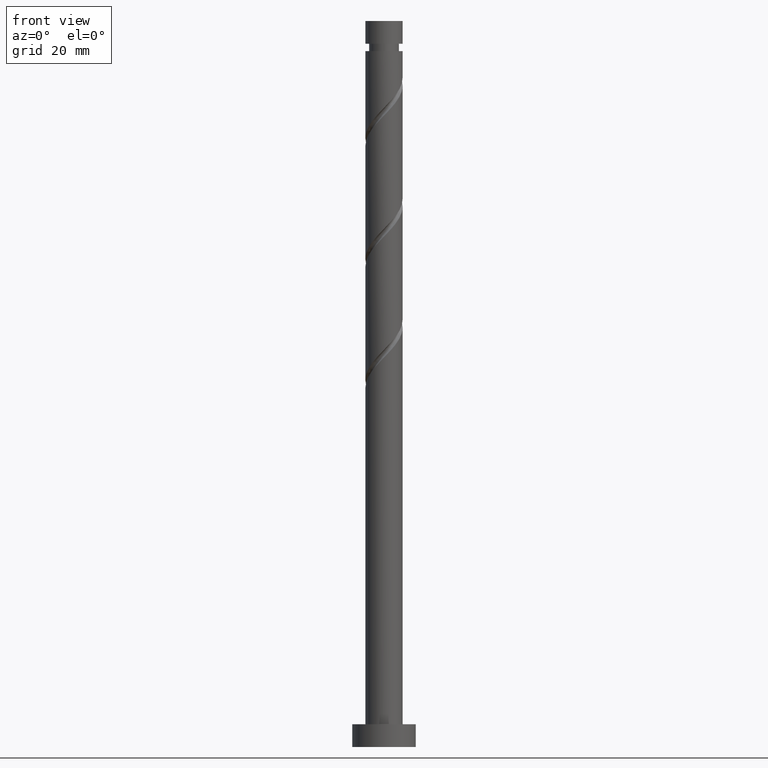
[diagram: clean part render]
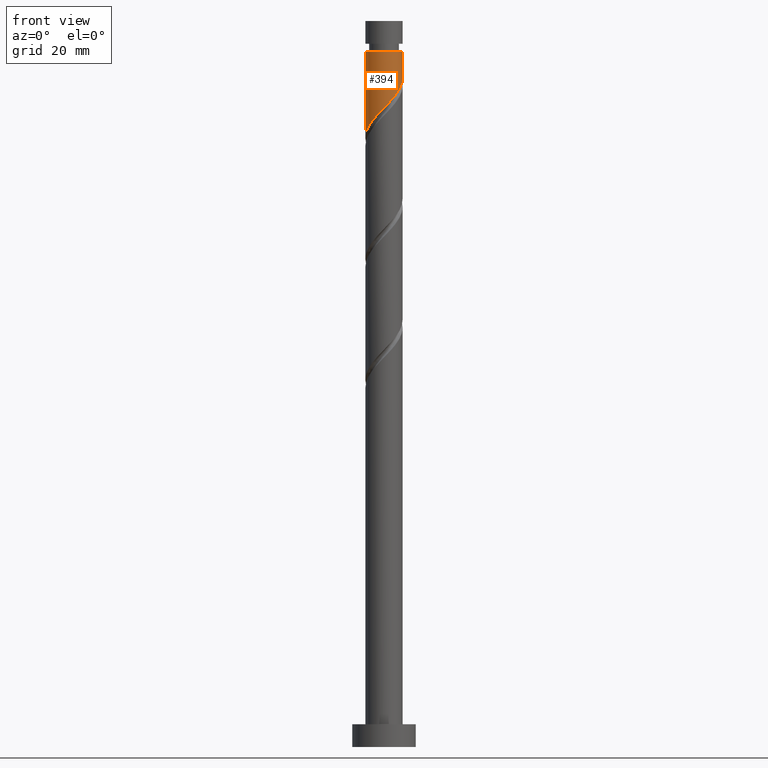
[diagram: same view with one face highlighted and labeled with its STEP entity id]
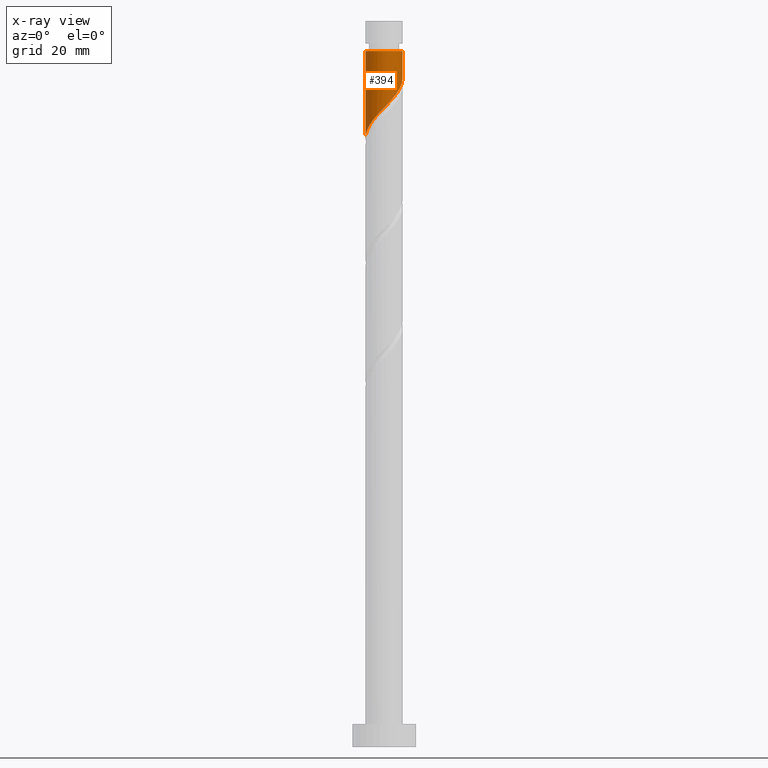
[diagram: x-ray of the same camera — body ghosted, the highlighted face saturated]
A machine part, front view. The second image highlights one B-rep face of the part: STEP entity #394.
The next image is the same camera in x-ray: the body ghosted, the highlighted face saturated — about 0% of this face is hidden behind the body in this view.
In plain terms, the highlighted cylindrical surface (edge-blend (fillet) strip) has radius 4.1 mm, axis along (-0, -0, -1).
Its self-contained STEP definition (entity closure, byte-faithful):
#1 = CARTESIAN_POINT ( 'NONE',  ( 0.3491609805032936387, -4.085105458821592705, 141.2346666632375900 ) ) ;
#9 = CARTESIAN_POINT ( 'NONE',  ( 2.969276373543971115, -2.888061194458450665, 144.2649696935406496 ) ) ;
#16 = CARTESIAN_POINT ( 'NONE',  ( 1.485924713333949487, -3.821259968427092701, 142.4467878753588650 ) ) ;
#46 = ORIENTED_EDGE ( 'NONE', *, *, #325, .F. ) ;
#51 = DIRECTION ( 'NONE',  ( -1.000000000000000000, 0.000000000000000000, 0.000000000000000000 ) ) ;
#59 = FACE_OUTER_BOUND ( 'NONE', #692, .T. ) ;
#93 = EDGE_CURVE ( 'NONE', #1343, #898, #1187, .T. ) ;
#243 = CARTESIAN_POINT ( 'NONE',  ( 4.099999999999999645, -0.1179796587476808212, 147.4165685923657065 ) ) ;
#274 = CARTESIAN_POINT ( 'NONE',  ( -1.393590883699232119, -3.900692771072031828, 139.4164848450557770 ) ) ;
#278 = VERTEX_POINT ( 'NONE', #1240 ) ;
#294 = EDGE_CURVE ( 'NONE', #898, #1003, #1110, .T. ) ;
#325 = EDGE_CURVE ( 'NONE', #1343, #278, #412, .T. ) ;
#339 = VECTOR ( 'NONE', #431, 1000.000000000000000 ) ;
#376 = CARTESIAN_POINT ( 'NONE',  ( -1.914841846274434101, -3.625380077144507940, 138.8104242389952105 ) ) ;
#394 = ADVANCED_FACE ( 'NONE', ( #59 ), #538, .T. ) ;
#412 = LINE ( 'NONE', #1148, #339 ) ;
#413 =( BOUNDED_CURVE ( )  B_SPLINE_CURVE ( 2, ( #1255, #243, #524, #631, #502, #1533, #1127, #9, #1020, #1416, #16, #1271, #1, #510, #622, #274, #376, #1542, #1287, #649, #1409, #642, #1013, #531, #888 ),
 .UNSPECIFIED., .F., .T. ) 
 B_SPLINE_CURVE_WITH_KNOTS ( ( 3, 2, 2, 2, 2, 2, 2, 2, 2, 2, 2, 2, 3 ),
 ( 0.3045252162417514952, 0.3068181818181818232, 0.3181818181818181768, 0.3295454545454545303, 0.3409090909090908839, 0.3522727272727272929, 0.3636363636363636465, 0.3750000000000000000, 0.3863636363636363535, 0.3977272727272727071, 0.4090909090909091161, 0.4204545454545454697, 0.4295252162417514397 ),
 .UNSPECIFIED. ) 
 CURVE ( )  GEOMETRIC_REPRESENTATION_ITEM ( )  RATIONAL_B_SPLINE_CURVE ( ( 0.9061101570135566829, 0.9072237824201387912, 0.9090909090909161661, 0.8998376744372185154, 0.9090909090909161661, 0.8998376744372185154, 0.9090909090909161661, 0.8998376744372185154, 0.9090909090909161661, 0.8998376744372185154, 0.9090909090909161661, 0.8998376744372185154, 0.9090909090909161661, 0.8998376744372185154, 0.9090909090909161661, 0.8998376744372185154, 0.9090909090909161661, 0.8998376744372185154, 0.9090909090909161661, 0.8998376744372185154, 0.9090909090909161661, 0.8998376744372185154, 0.9090909090909161661, 0.9017048011079960013, 0.9061101570135565719 ) ) 
 REPRESENTATION_ITEM ( '' )  );
#431 = DIRECTION ( 'NONE',  ( -0.000000000000000000, -0.000000000000000000, -1.000000000000000000 ) ) ;
#474 = VECTOR ( 'NONE', #748, 1000.000000000000000 ) ;
#502 = CARTESIAN_POINT ( 'NONE',  ( 3.860989342997048546, -1.379406137895297535, 146.0831515117224626 ) ) ;
#510 = CARTESIAN_POINT ( 'NONE',  ( -0.2381885131556273905, -4.135307228927970868, 140.6286060571769667 ) ) ;
#524 = CARTESIAN_POINT ( 'NONE',  ( 4.093215763958126807, -0.2357640975311786624, 147.2952727238436239 ) ) ;
#531 = CARTESIAN_POINT ( 'NONE',  ( -4.100000000000000533, -0.4695686022789986591, 134.6912932167218457 ) ) ;
#538 = CYLINDRICAL_SURFACE ( 'NONE', #1657, 4.099999999999999645 ) ;
#582 = CARTESIAN_POINT ( 'NONE',  ( 0.000000000000000000, 0.000000000000000000, 153.3558787844497147 ) ) ;
#616 = ORIENTED_EDGE ( 'NONE', *, *, #1552, .F. ) ;
#622 = CARTESIAN_POINT ( 'NONE',  ( -0.8158896984274295328, -4.017999999999999794, 140.0225454511163719 ) ) ;
#631 = CARTESIAN_POINT ( 'NONE',  ( 4.059318004229829135, -0.8242796770264090300, 146.6892121177830290 ) ) ;
#642 = CARTESIAN_POINT ( 'NONE',  ( -3.860554850343157263, -1.501204813779628999, 135.7801212086921510 ) ) ;
#649 = CARTESIAN_POINT ( 'NONE',  ( -3.281236982628830123, -2.528039459591574722, 136.9922424208133691 ) ) ;
#651 = ORIENTED_EDGE ( 'NONE', *, *, #93, .T. ) ;
#692 = EDGE_LOOP ( 'NONE', ( #46, #651, #1405, #616 ) ) ;
#748 = DIRECTION ( 'NONE',  ( -0.000000000000000000, -0.000000000000000000, -1.000000000000000000 ) ) ;
#888 = CARTESIAN_POINT ( 'NONE',  ( -4.100000000000000533, -1.809775305123073791E-15, 134.2053332637506173 ) ) ;
#898 = VERTEX_POINT ( 'NONE', #1428 ) ;
#1003 = VERTEX_POINT ( 'NONE', #1478 ) ;
#1006 = CARTESIAN_POINT ( 'NONE',  ( -4.099999999999999645, 0.000000000000000000, 160.0000000000000000 ) ) ;
#1013 = CARTESIAN_POINT ( 'NONE',  ( -3.993834187014791759, -0.9269781478718408518, 135.1740606026314993 ) ) ;
#1020 = CARTESIAN_POINT ( 'NONE',  ( 2.502307663024825768, -3.247838721298709430, 143.6589090874799695 ) ) ;
#1044 = DIRECTION ( 'NONE',  ( -0.000000000000000000, -0.000000000000000000, -1.000000000000000000 ) ) ;
#1066 = DIRECTION ( 'NONE',  ( -1.000000000000000000, 0.000000000000000000, 0.000000000000000000 ) ) ;
#1089 = DIRECTION ( 'NONE',  ( -0.000000000000000000, -0.000000000000000000, -1.000000000000000000 ) ) ;
#1110 = LINE ( 'NONE', #1006, #474 ) ;
#1127 = CARTESIAN_POINT ( 'NONE',  ( 3.315968527654119313, -2.411296896611318186, 144.8710302996012160 ) ) ;
#1148 = CARTESIAN_POINT ( 'NONE',  ( 4.099999999999999645, 5.021051876504147385E-16, 160.0000000000000000 ) ) ;
#1187 = CIRCLE ( 'NONE', #1376, 4.099999999999992539 ) ;
#1240 = CARTESIAN_POINT ( 'NONE',  ( 4.100000000000000533, 8.824524215062922599E-16, 147.5386665970839601 ) ) ;
#1255 = CARTESIAN_POINT ( 'NONE',  ( 4.100000000000000533, 8.824524215062922599E-16, 147.5386665970839601 ) ) ;
#1258 = CARTESIAN_POINT ( 'NONE',  ( 4.099999999999992539, 5.021051876504142455E-16, 153.3558787844497147 ) ) ;
#1271 = CARTESIAN_POINT ( 'NONE',  ( 0.9365104741622169993, -4.034903688715218095, 141.8407272692981849 ) ) ;
#1287 = CARTESIAN_POINT ( 'NONE',  ( -2.858664895739233547, -2.939053421404278943, 137.5983030268739924 ) ) ;
#1343 = VERTEX_POINT ( 'NONE', #1258 ) ;
#1376 = AXIS2_PLACEMENT_3D ( 'NONE', #582, #1089, #1066 ) ;
#1405 = ORIENTED_EDGE ( 'NONE', *, *, #294, .T. ) ;
#1409 = CARTESIAN_POINT ( 'NONE',  ( -3.570895916485993471, -2.014622136685600751, 136.3861818147527742 ) ) ;
#1416 = CARTESIAN_POINT ( 'NONE',  ( 2.035338952505681753, -3.607616248138968196, 143.0528484814194030 ) ) ;
#1428 = CARTESIAN_POINT ( 'NONE',  ( -4.099999999999992539, 0.000000000000000000, 153.3558787844497147 ) ) ;
#1478 = CARTESIAN_POINT ( 'NONE',  ( -4.100000000000000533, -1.809775305123073791E-15, 134.2053332637506173 ) ) ;
#1533 = CARTESIAN_POINT ( 'NONE',  ( 3.662660681764268400, -1.934532598764185707, 145.4770909056618109 ) ) ;
#1542 = CARTESIAN_POINT ( 'NONE',  ( -2.436092808849636082, -3.350067383216985828, 138.2043636329345873 ) ) ;
#1552 = EDGE_CURVE ( 'NONE', #278, #1003, #413, .T. ) ;
#1580 = CARTESIAN_POINT ( 'NONE',  ( 0.000000000000000000, 0.000000000000000000, 160.0000000000000000 ) ) ;
#1657 = AXIS2_PLACEMENT_3D ( 'NONE', #1580, #1044, #51 ) ;